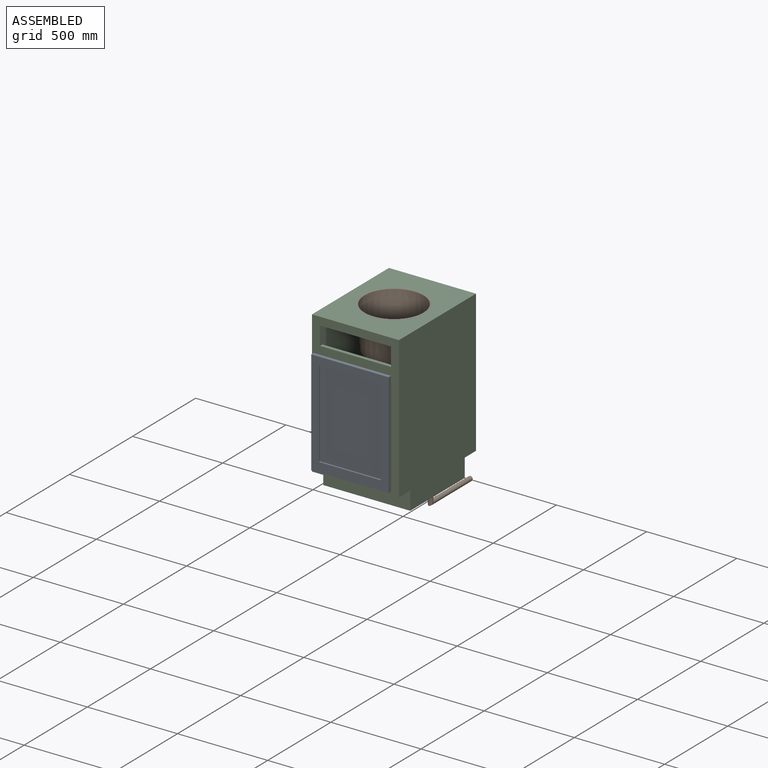
[diagram: assembled view]
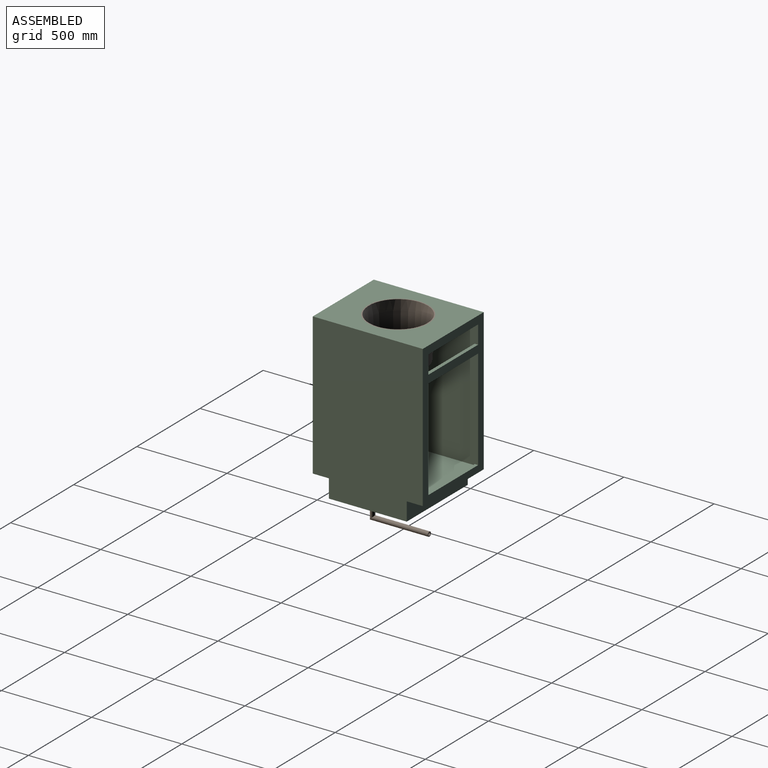
[diagram: assembled view, second angle]
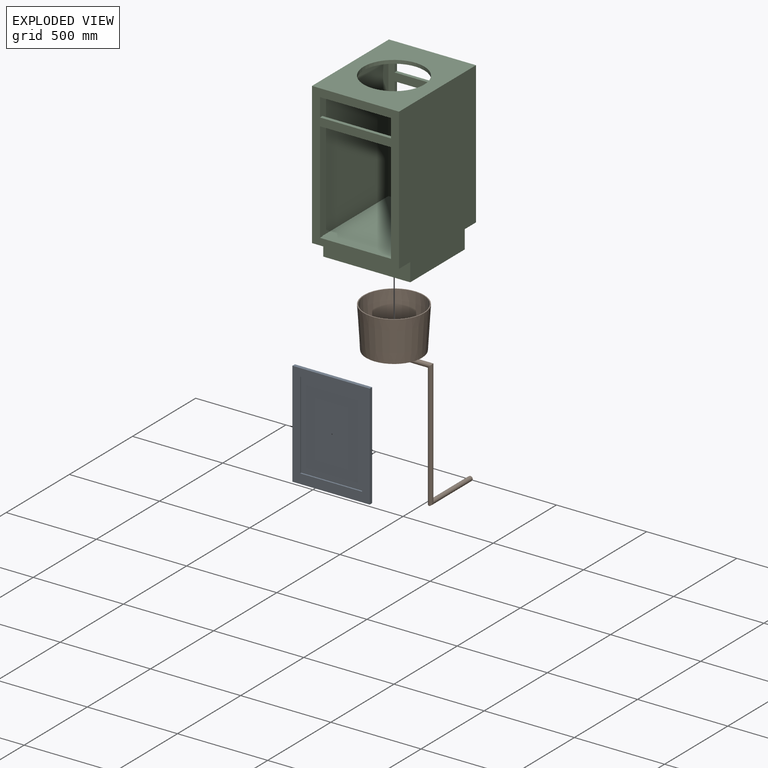
[diagram: exploded view]
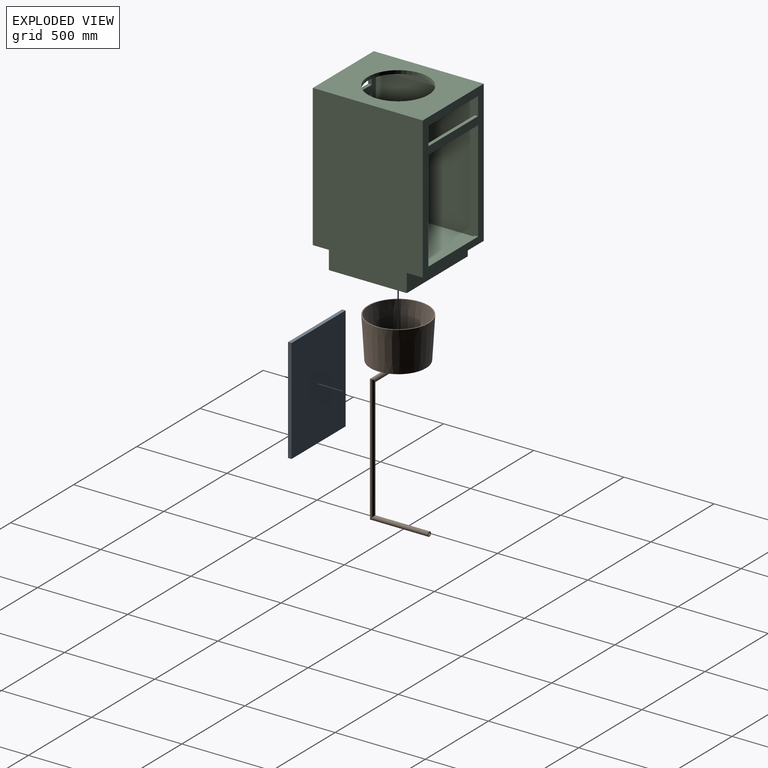
[diagram: exploded view, second angle]
ASSEMBLY  parts=3 mates=2
PART A: 11 faces, bbox 428.6x19.1x581 mm
  f0: plane 581.03x428.63mm, normal (0,-1,0), area 82413.9mm2, adj f1,f2,f3,f4,f6,f7,f8,f9
  f1: plane 581.03x19.05mm, normal (-1,0,0), area 11068.5mm2, adj f0,f2,f4,f5
  f2: plane 428.63x19.05mm, normal (0,0,-1), area 8165.3mm2, adj f0,f1,f3,f5
  f3: plane 581.03x19.05mm, normal (1,0,0), area 11068.5mm2, adj f0,f2,f4,f5
  f4: plane 428.63x19.05mm, normal (0,0,1), area 8165.3mm2, adj f0,f1,f3,f5
  f5: plane 581.03x428.63mm, normal (0,1,0), area 249041.8mm2, adj f1,f2,f3,f4
  f6: plane 484.8x8.38mm, normal (1,0,0), area 4063.6mm2, adj f0,f7,f9,f10
  f7: plane 343.71x8.38mm, normal (0,0,1), area 2881mm2, adj f0,f6,f8,f10
  f8: plane 484.8x8.38mm, normal (-1,0,0), area 4063.6mm2, adj f0,f7,f9,f10
  f9: plane 343.71x8.38mm, normal (0,0,-1), area 2881mm2, adj f0,f6,f8,f10
  f10: plane 484.8x343.71mm, normal (0,-1,0), area 166627.9mm2, adj f6,f7,f8,f9
PART B: 16 faces, bbox 384.2x483.2x952.5 mm
  f0: cone r=168.28mm half-angle=3.5deg, axis (0,0,1), area 232091.1mm2, adj f1,f2
  f1: plane 308.59x308.59mm, normal (0,0,-1), area 74283.3mm2, adj f0,f9
  f2: plane 336.55x336.55mm, normal (0,0,1), area 5560.5mm2, adj f0,f3
  f3: cone r=162.95mm half-angle=3.5deg, axis (0,0,1), area 219394.3mm2, adj f2,f4
  f4: plane 298.55x298.55mm, normal (0,0,1), area 69852.6mm2, adj f3,f15
  f5: plane 25.4x25.4mm, normal (0,1,0), area 324.3mm2, adj f6,f11
  f6: cylinder r=12.7mm len=327.66mm, axis (0,1,0), area 25098.1mm2, adj f5,f7
  f7: cylinder r=12.7mm len=711.2mm, axis (0,0,-1), area 54689.8mm2, adj f6,f8
  f8: cylinder r=12.7mm len=228.61mm, axis (1,0,0), area 16214.7mm2, adj f7,f9
  f9: cylinder r=12.7mm len=38.11mm, axis (0,0,-1), area 2026.8mm2, adj f1,f8
  f10: plane 15.24x15.24mm, normal (0,0,-1), area 30.4mm2, adj f14,f15
  f11: cylinder r=7.62mm len=322.62mm, axis (0,1,0), area 15092.1mm2, adj f5,f12
  f12: cylinder r=7.62mm len=701.12mm, axis (0,0,-1), area 32859.6mm2, adj f11,f13
  f13: cylinder r=7.62mm len=218.48mm, axis (1,0,0), area 9728.8mm2, adj f12,f14
  f14: cylinder r=7.62mm len=33.28mm, axis (0,0,-1), area 1205.1mm2, adj f10,f13
  f15: cylinder r=6.96mm len=13.91mm, axis (0,0,1), area 222mm2, adj f4,f10
PART C: 38 faces, bbox 482.6x609.6x889 mm
  f0: plane 482.6x431.8mm, normal (0,0,-1), area 18167.7mm2, adj f6,f7,f21,f22,f33,f34,f35,f37
  f1: plane 787.4x482.6mm, normal (0,-1,0), area 119999.8mm2, adj f5,f6,f7,f11,f17,f18,f19,f20
  f2: plane 787.4x482.6mm, normal (0,1,0), area 119999.8mm2, adj f6,f7,f8,f11,f13,f14,f15,f16
  f3: plane 755.65x462.28mm, normal (0,1,0), area 89322.4mm2, adj f9,f10,f12,f17,f18,f19,f20,f27
  f4: plane 755.65x462.28mm, normal (0,-1,0), area 89322.4mm2, adj f9,f10,f12,f13,f14,f15,f16,f23
  f5: plane 482.6x88.9mm, normal (0,0,-1), area 42903.1mm2, adj f1,f6,f7,f22
  f6: plane 889x609.6mm, normal (-1,0,0), area 523869.9mm2, adj f0,f1,f2,f5,f8,f11,f21,f22
  f7: plane 889x609.6mm, normal (1,0,0), area 523869.9mm2, adj f0,f1,f2,f5,f8,f11,f21,f22
  f8: plane 482.6x88.9mm, normal (0,0,-1), area 42903.1mm2, adj f2,f6,f7,f21
  f9: plane 755.65x571.5mm, normal (1,0,0), area 431854mm2, adj f3,f4,f12,f31
  f10: plane 755.65x571.5mm, normal (-1,0,0), area 431854mm2, adj f3,f4,f12,f31
  f11: plane 609.6x482.6mm, normal (0,0,1), area 205234.1mm2, adj f1,f2,f6,f7,f32
  f12: plane 571.5x462.28mm, normal (0,0,1), area 264193mm2, adj f3,f4,f9,f10
  f13: plane 393.7x19.05mm, normal (0,0,-1), area 7500mm2, adj f2,f4,f14,f16
  f14: plane 558.8x19.05mm, normal (1,0,0), area 10645.1mm2, adj f2,f4,f13,f15
  f15: plane 393.7x19.05mm, normal (0,0,1), area 7500mm2, adj f2,f4,f14,f16
  f16: plane 558.8x19.05mm, normal (-1,0,0), area 10645.1mm2, adj f2,f4,f13,f15
  f17: plane 558.8x19.05mm, normal (-1,0,0), area 10645.1mm2, adj f1,f3,f18,f20
  f18: plane 393.7x19.05mm, normal (0,0,1), area 7500mm2, adj f1,f3,f17,f19
  f19: plane 558.8x19.05mm, normal (1,0,0), area 10645.1mm2, adj f1,f3,f18,f20
  f20: plane 393.7x19.05mm, normal (0,0,-1), area 7500mm2, adj f1,f3,f17,f19
  f21: plane 482.6x101.6mm, normal (0,1,0), area 49032.2mm2, adj f0,f6,f7,f8
  f22: plane 482.6x101.6mm, normal (0,-1,0), area 49032.2mm2, adj f0,f5,f6,f7
  f23: plane 393.7x19.05mm, normal (0,0,-1), area 7500mm2, adj f2,f4,f24,f26
  f24: plane 101.6x19.05mm, normal (1,0,0), area 1935.5mm2, adj f2,f4,f23,f25
  f25: plane 393.7x19.05mm, normal (0,0,1), area 7500mm2, adj f2,f4,f24,f26
  f26: plane 101.6x19.05mm, normal (-1,0,0), area 1935.5mm2, adj f2,f4,f23,f25
  f27: plane 101.6x19.05mm, normal (-1,0,0), area 1935.5mm2, adj f1,f3,f28,f30
  f28: plane 393.7x19.05mm, normal (0,0,1), area 7500mm2, adj f1,f3,f27,f29
  f29: plane 101.6x19.05mm, normal (1,0,0), area 1935.5mm2, adj f1,f3,f28,f30
  f30: plane 393.7x19.05mm, normal (0,0,-1), area 7500mm2, adj f1,f3,f27,f29
  f31: plane 571.5x462.28mm, normal (0,0,-1), area 175234.2mm2, adj f3,f4,f9,f10,f32
  f32: cylinder r=168.28mm len=336.55mm, axis (0,0,1), area 20141.6mm2, adj f11,f31
  f33: plane 462.28x104.14mm, normal (0,-1,0), area 48141.8mm2, adj f0,f34,f35,f36
  f34: plane 411.48x104.14mm, normal (1,0,0), area 42851.5mm2, adj f0,f33,f36,f37
  f35: plane 411.48x104.14mm, normal (-1,0,0), area 42851.5mm2, adj f0,f33,f36,f37
  f36: plane 462.28x411.48mm, normal (0,0,-1), area 190219mm2, adj f33,f34,f35,f37
  f37: plane 462.28x104.14mm, normal (0,1,0), area 48141.8mm2, adj f0,f34,f35,f36
PLACE A t=(-231.78,-304.8,15.88)mm
PLACE B t=(0,0,787.4)mm
PLACE C at identity
MATE fastened B.f0 <-> C.f32  axis (0,0,1) through (0,0,787.4)mm
MATE fastened A.f4 <-> C.f20  axis (0,0,1) through (196.85,-304.8,596.9)mm
